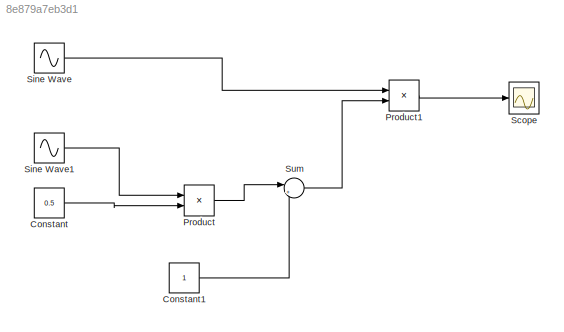
MODEL slx_8e879a7eb3d1
KIND model
CONFIG AbsTol = auto
CONFIG EnableMultiTasking = off
CONFIG FixedStep = auto
CONFIG MaxStep = auto
CONFIG MinStep = auto
CONFIG RelTol = 1e-3
CONFIG SampleTimeConstraint = Unconstrained
CONFIG SolverName = VariableStepAuto
CONFIG StartTime = 0.0
CONFIG StopTime = 5
BLOCK [Constant] Constant
  Value = 0.5
BLOCK [Constant] Constant1
BLOCK [Product] Product
BLOCK [Product] Product1
BLOCK [Scope] Scope
  Floating = off
  NumInputPorts = 1
  ScopeSpecificationString = Simulink.scopes.TimeScopeBlockCfg('CurrentConfiguration', extmgr.ConfigurationSet(extmgr.Configuration('Core','General UI',true),extmgr.Configuration('Core','Source UI',true),extmgr.Configuration('Sources','WiredSimulink',true),extmgr.Configuration('Visuals','Time Domain',true,'SerializedDisplays',{struct('MinYLimReal','-1.87056','MaxYLimReal','1.87451','YLabelReal','','MinYLimMag','0.00000','MaxY...<+1328ch>
BLOCK [Sin] Sine Wave
  Frequency = 2*pi*25
  SampleTime = 1/5000
BLOCK [Sin] Sine Wave1
  Frequency = 2*pi
  SampleTime = 1/5000
BLOCK [Sum] Sum
  Inputs = |++
LINE Constant1:1 -> Sum:2
LINE Constant:1 -> Product:2
LINE Product1:1 -> Scope:1
LINE Product:1 -> Sum:1
LINE Sine Wave1:1 -> Product:1
LINE Sine Wave:1 -> Product1:1
LINE Sum:1 -> Product1:2
